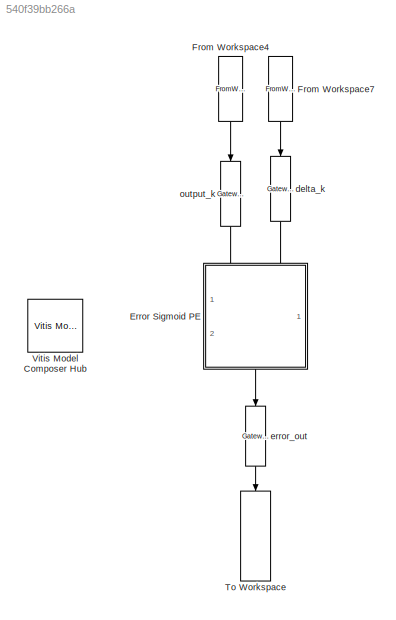
MODEL slx_540f39bb266a
KIND model
CONFIG AbsTol = auto
CONFIG EnableMultiTasking = off
CONFIG FixedStep = auto
CONFIG MaxStep = auto
CONFIG MinStep = auto
CONFIG RelTol = 1e-3
CONFIG SampleTimeConstraint = Unconstrained
CONFIG SolverName = VariableStepAuto
CONFIG StartTime = 0.0
CONFIG StopTime = 10.0
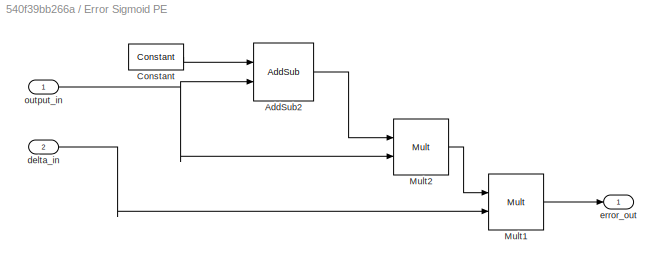
BLOCK [SubSystem] Error Sigmoid PE
  PortSchema = {"entries":[{"content":{"sides":[{"content":{"connectorIds":[]},"type":"ConnectorPlacement.EquallySpacedRectSide","uuid":"4b4c7bc9-3645-4c76-a1de-5ab676f1a9ac"},{"content":{"connectorIds":[],"side":"RIGHT"},"type":"ConnectorPlacement.EquallySpacedRectSide","uuid":"d1be90c1-a42c-4064-b554-aa0c88bdcf76"},{"content":{"connectorIds":["In1","In2"],"side":"TOP"},"type":"ConnectorPlacement.EquallySpacedR...<+390ch>
  Ports = [2, 1]
  RequestExecContextInheritance = off
BLOCK [Reference] Error Sigmoid PE/AddSub2  REF=hdlBasic/AddSub
  Ports = [2, 1]
  SourceBlock = hdlBasic/AddSub
  SourceType = Adder/Subtracter Block
BLOCK [Reference] Error Sigmoid PE/Constant  REF=hdlBasic/Constant
  Ports = [0, 1]
  SourceBlock = hdlBasic/Constant
  SourceType = Constant Block Block
BLOCK [Reference] Error Sigmoid PE/Mult1  REF=hdlBasic/Mult
  Ports = [2, 1]
  SourceBlock = hdlBasic/Mult
  SourceType = Multiplier Block
BLOCK [Reference] Error Sigmoid PE/Mult2  REF=hdlBasic/Mult
  Ports = [2, 1]
  SourceBlock = hdlBasic/Mult
  SourceType = Multiplier Block
BLOCK [Inport] Error Sigmoid PE/delta_in
  Port = 2
BLOCK [Outport] Error Sigmoid PE/error_out
BLOCK [Inport] Error Sigmoid PE/output_in
BLOCK [FromWorkspace] From Workspace4
  NameLocation = left
  VariableName = output
BLOCK [FromWorkspace] From Workspace7
  NameLocation = left
  VariableName = delta
BLOCK [ToWorkspace] To Workspace
  FixptAsFi = on
  MaxDataPoints = inf
  NameLocation = left
  Ports = [1]
  SampleTime = -1
  SaveFormat = Timeseries
  VariableName = error_out
BLOCK [Reference] Vitis Model Composer Hub  REF=vmcUtilities/Vitis Model Composer Hub
  Ports = []
  SourceBlock = vmcUtilities/Vitis Model Composer Hub
  SourceType = VMC Hub
  Tag = genX
  UserDataPersistent = on
BLOCK [Reference] delta_k  REF=hdlBasic/Gateway In
  NameLocation = left
  Ports = [1, 1]
  SourceBlock = hdlBasic/Gateway In
  SourceType = Gateway In Block
BLOCK [Reference] error_out  REF=hdlBasic/Gateway Out
  Ports = [1, 1]
  SourceBlock = hdlBasic/Gateway Out
  SourceType = Gateway Out Block
BLOCK [Reference] output_k  REF=hdlBasic/Gateway In
  NameLocation = left
  Ports = [1, 1]
  SourceBlock = hdlBasic/Gateway In
  SourceType = Gateway In Block
LINE Error Sigmoid PE/AddSub2:1 -> Error Sigmoid PE/Mult2:1
LINE Error Sigmoid PE/Constant:1 -> Error Sigmoid PE/AddSub2:1
LINE Error Sigmoid PE/Mult1:1 -> Error Sigmoid PE/error_out:1
LINE Error Sigmoid PE/Mult2:1 -> Error Sigmoid PE/Mult1:1
LINE Error Sigmoid PE/delta_in:1 -> Error Sigmoid PE/Mult1:2
NET Error Sigmoid PE/output_in:1 -> Error Sigmoid PE/AddSub2:2, Error Sigmoid PE/Mult2:2
LINE Error Sigmoid PE:1 -> error_out:1
LINE From Workspace4:1 -> output_k:1
LINE From Workspace7:1 -> delta_k:1
LINE delta_k:1 -> Error Sigmoid PE:2
LINE error_out:1 -> To Workspace:1
LINE output_k:1 -> Error Sigmoid PE:1
note: NET lines group one-source signal fan-out (src -> all destinations, sorted); 1:1 wires keep LINE
